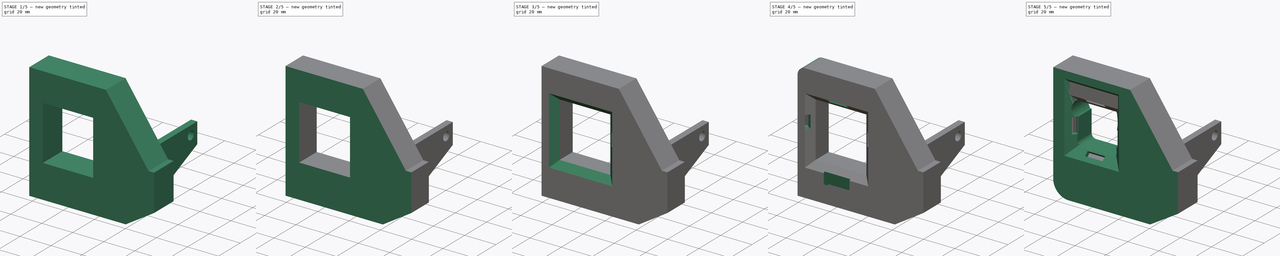
[diagram: build sequence overview — one tinted view per stage of 5, left to right]
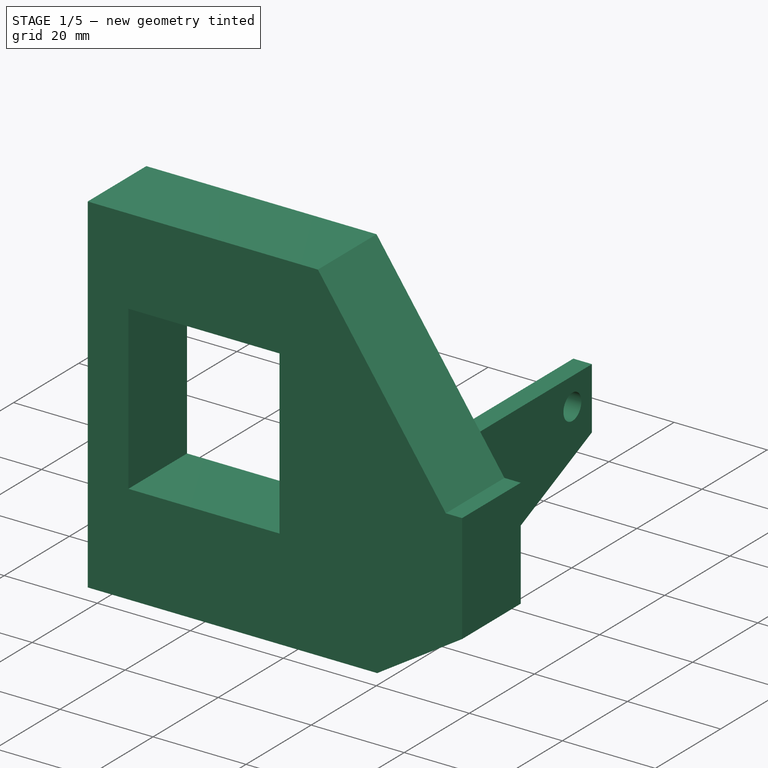
[diagram: stage 1 of 5 — iso view after this stage's code; geometry added in this stage tinted green]
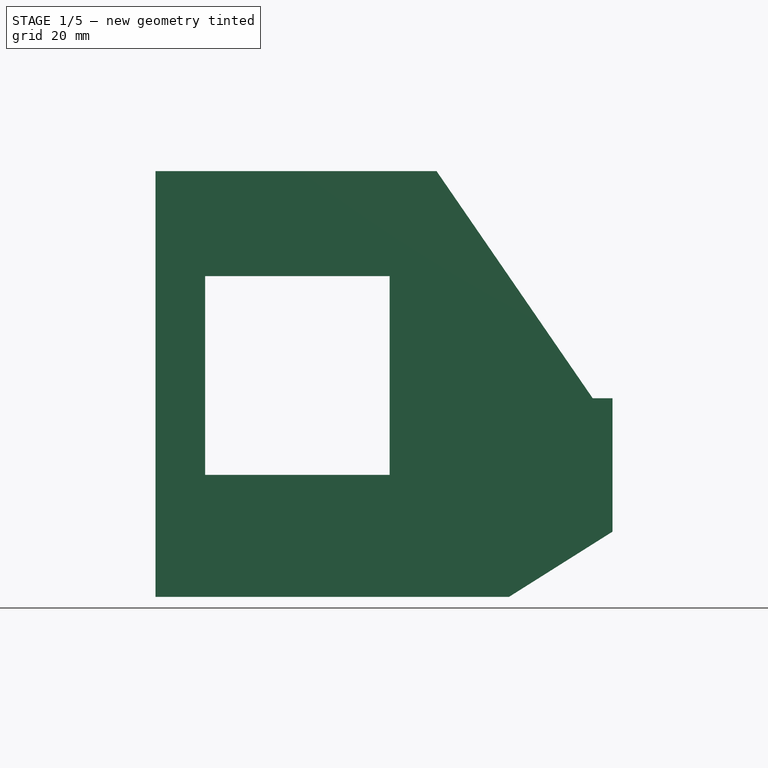
[diagram: stage 1 of 5 — front view after this stage's code; geometry added in this stage tinted green]
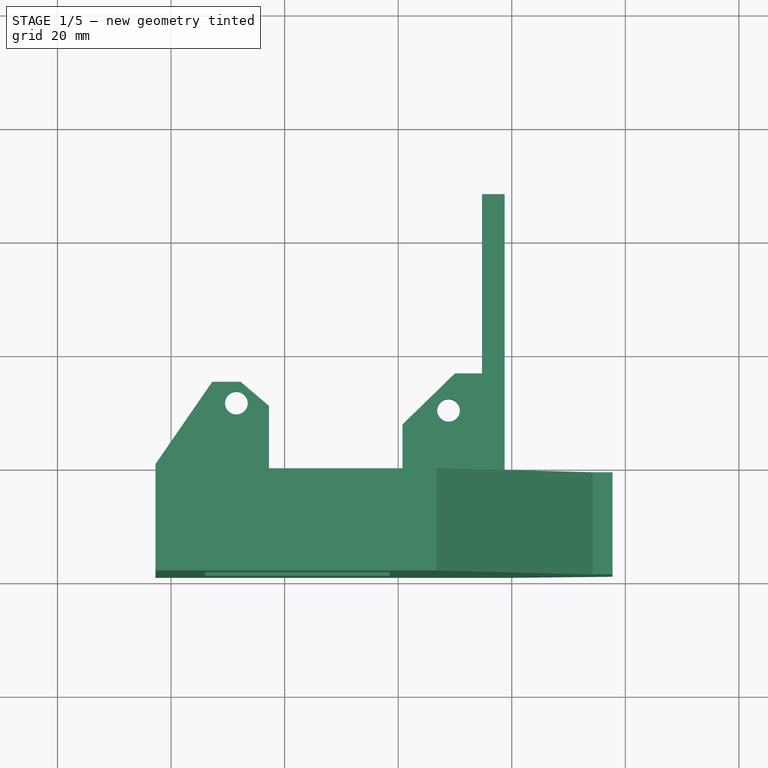
[diagram: stage 1 of 5 — top view after this stage's code; geometry added in this stage tinted green]
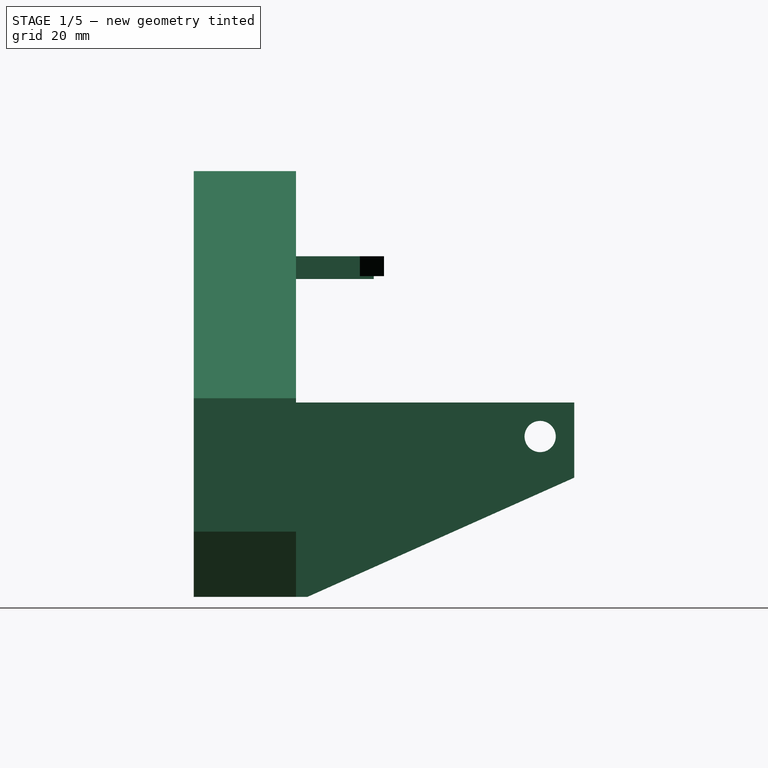
[diagram: stage 1 of 5 — right view after this stage's code; geometry added in this stage tinted green]
FCSTD DOCUMENT  (FreeCAD 0.17R11850 (Git))
Label: blower_shoud_v2
License: All rights reserved
LicenseURL: http://en.wikipedia.org/wiki/All_rights_reserved
objects: Sketcher::SketchObject×20, PartDesign::Pocket×7, PartDesign::Pad×5, App::FeaturePython×4, PartDesign::SubtractivePipe×4, PartDesign::Fillet×4, Part::FeaturePython×3, PartDesign::Chamfer×1, PartDesign::Body×1
note: 61 computed .brp shape members not serialized (recipe doc carries the construction recipe); baked Part::Feature solids carry a one-line shape summary decoded from their .brp

FEATURE [Part::FeaturePython] titan_assembly_2_mirror_sideways_block_01  # a2plus imported part (geometry in sourceFile) (typed FeaturePython)
  Placement = pos=(-35.5272,2.5,26.9) rot=(1,0,0;3.14159rad)
  fixedPosition = false
  sourceFile = <userpath>/west/Titan AEro/MINI_aero/titan_assembly_2_mirror_sideways_block.fcstd
  timeLastImport = 1496241552
  updateColors = true
FEATURE [Part::FeaturePython] titan_assembly_2_mirror_sideways_block_02  # a2plus imported part (geometry in sourceFile) (typed FeaturePython)
  Placement = pos=(-0.00571599,2.5,-0.1) rot=(0,0,1;3.14159rad)
  fixedPosition = false
  sourceFile = <userpath>/west/Titan AEro/MINI_aero/titan_assembly_2_mirror_sideways_block.fcstd
  timeLastImport = 1496241552
  updateColors = true
FEATURE [App::FeaturePython] circularEdgeConstraint01  label="circularEdgeConstraint01__aero_mini_blower_mount_v6_1_0_lower_01"  # a2plus constraint (typed FeaturePython)
  Object1 = titan_assembly_2_mirror_sideways_block_02
  Object2 = aero_mini_blower_mount_v6_1_0_lower_01
  SubElement1 = Edge5206
  SubElement2 = Edge78
  Type = circularEdge
  directionConstraint = 1
  lockRotation = false
  offset = 0
FEATURE [App::FeaturePython] circularEdgeConstraint01_mirror  label="circularEdgeConstraint01__titan_assembly_2_mirror_sideways_block_02"  # a2plus constraint (typed FeaturePython)
  Object1 = titan_assembly_2_mirror_sideways_block_02
  Object2 = aero_mini_blower_mount_v6_1_0_lower_01
  SubElement1 = Edge5206
  SubElement2 = Edge78
  Type = circularEdge
  directionConstraint = 1
  lockRotation = false
  offset = 0
FEATURE [App::FeaturePython] circularEdgeConstraint02  label="circularEdgeConstraint02__titan_assembly_2_mirror_sideways_block_02"  # a2plus constraint (typed FeaturePython)
  Object1 = titan_assembly_2_mirror_sideways_block_01
  Object2 = titan_assembly_2_mirror_sideways_block_02
  SubElement1 = Edge5317
  SubElement2 = Edge5317
  Type = circularEdge
  directionConstraint = 0
  lockRotation = false
  offset = 0
FEATURE [App::FeaturePython] circularEdgeConstraint02_mirror  label="circularEdgeConstraint02__titan_assembly_2_mirror_sideways_block_01"  # a2plus constraint (typed FeaturePython)
  Object1 = titan_assembly_2_mirror_sideways_block_01
  Object2 = titan_assembly_2_mirror_sideways_block_02
  SubElement1 = Edge5317
  SubElement2 = Edge5317
  Type = circularEdge
  directionConstraint = 0
  lockRotation = false
  offset = 0
FEATURE [Sketcher::SketchObject] Sketch
  MapMode = 5
  Placement = pos=(0,0,0) rot=(1,0,0;1.5708rad)
  Support = -> [XZ_Plane]
  sketch-geometry (11):
    g0: LineSegment StartX=-42.75 StartY=44.75 StartZ=0 EndX=6.75 EndY=44.75 EndZ=0
    g1: LineSegment StartX=37.75 StartY=-18.75 StartZ=0 EndX=19.5 EndY=-30.25 EndZ=0
    g2: LineSegment StartX=19.5 StartY=-30.25 StartZ=0 EndX=-42.75 EndY=-30.25 EndZ=0
    g3: LineSegment StartX=-42.75 StartY=-30.25 StartZ=0 EndX=-42.75 EndY=44.75 EndZ=0
    g4: LineSegment StartX=6.75 StartY=44.75 StartZ=0 EndX=34.25 EndY=4.75 EndZ=0
    g5: LineSegment StartX=34.25 StartY=4.75 StartZ=0 EndX=37.75 EndY=4.75 EndZ=0
    g6: LineSegment StartX=37.75 StartY=4.75 StartZ=0 EndX=37.75 EndY=-18.75 EndZ=0
    g7: LineSegment StartX=-34 StartY=26.25 StartZ=0 EndX=-1.5 EndY=26.25 EndZ=0
    g8: LineSegment StartX=-1.5 StartY=26.25 StartZ=0 EndX=-1.5 EndY=-8.75 EndZ=0
    g9: LineSegment StartX=-1.5 StartY=-8.75 StartZ=0 EndX=-34 EndY=-8.75 EndZ=0
    g10: LineSegment StartX=-34 StartY=-8.75 StartZ=0 EndX=-34 EndY=26.25 EndZ=0
  constraints (33):
    c: Coincident(g1,g2)
    c: Coincident(g2,g3)
    c: Coincident(g3,g0)
    c: Horizontal(g0)
    c: Horizontal(g2)
    c: Vertical(g3)
    c: DistanceX(g0) = -42.75
    c: DistanceY(g0) = 44.75
    c: DistanceY(g3,g3) = 75
    c: DistanceX(g2,g2) = 62.25
    c: Coincident(g0,g4)
    c: Coincident(g4,g5)
    c: Horizontal(g5)
    c: Coincident(g5,g6)
    c: Coincident(g6,g1)
    c: Vertical(g6)
    c: DistanceX(g0,g0) = 49.5
    c: DistanceY(g4,g4) = 40
    c: DistanceX(g4,g4) = 27.5
    c: DistanceX(g5,g5) = 3.5
    c: DistanceY(g1,g1) = 11.5
    c: Coincident(g7,g8)
    c: Coincident(g8,g9)
    c: Coincident(g9,g10)
    c: Coincident(g10,g7)
    c: Horizontal(g7)
    c: Horizontal(g9)
    c: Vertical(g8)
    c: Vertical(g10)
    c: DistanceX(g7,g0) = -8.75
    c: DistanceY(g7,g0) = 18.5
    c: DistanceX(g7,g7) = 32.5
    c: DistanceY(g10,g10) = 35
FEATURE [PartDesign::Pad] Pad
  Length = 19
  Length2 = 48
  Placement = pos=(0,0,0) rot=(1,0,0;1.5708rad)
  Profile = -> Sketch
  Type = 4
FEATURE [Sketcher::SketchObject] Sketch001
  ExternalGeometry = -> [Pad]
  MapMode = 5
  Placement = pos=(0,48,0) rot=(-1,0,0;1.5708rad)
  Support = -> [Pad]
  sketch-geometry (19):
    g0: LineSegment StartX=-42.75 StartY=-25.75 StartZ=0 EndX=-22.75 EndY=-25.75 EndZ=0
    g1: LineSegment StartX=-22.75 StartY=-29.75 StartZ=0 EndX=-42.75 EndY=-29.75 EndZ=0
    g2: LineSegment StartX=14.75 StartY=30.25 StartZ=0 EndX=14.75 EndY=6 EndZ=0
    g3: LineSegment StartX=18.75 StartY=-4 StartZ=0 EndX=18.75 EndY=30.25 EndZ=0
    g4: LineSegment StartX=18.75 StartY=-4 StartZ=0 EndX=14.75 EndY=-4 EndZ=0
    g5: LineSegment StartX=18.75 StartY=30.25 StartZ=0 EndX=19.5 EndY=30.25 EndZ=0
    g6: LineSegment StartX=19.5 StartY=30.25 StartZ=0 EndX=37.75 EndY=18.75 EndZ=0
    g7: LineSegment StartX=37.75 StartY=18.75 StartZ=0 EndX=37.75 EndY=-4.75 EndZ=0
    g8: LineSegment StartX=37.75 StartY=-4.75 StartZ=0 EndX=34.25 EndY=-4.75 EndZ=0
    g9: LineSegment StartX=34.25 StartY=-4.75 StartZ=0 EndX=6.75 EndY=-44.75 EndZ=0
    g10: LineSegment StartX=6.75 StartY=-44.75 StartZ=0 EndX=-42.75 EndY=-44.75 EndZ=0
    g11: LineSegment StartX=-42.75 StartY=-44.75 StartZ=0 EndX=-42.75 EndY=-29.75 EndZ=0
    g12: LineSegment StartX=-22.75 StartY=-29.75 StartZ=0 EndX=-22.75 EndY=-25.75 EndZ=0
    g13: LineSegment StartX=-42.75 StartY=-25.75 StartZ=0 EndX=-42.75 EndY=30.25 EndZ=0
    g14: LineSegment StartX=-42.75 StartY=30.25 StartZ=0 EndX=14.75 EndY=30.25 EndZ=0
    g15: LineSegment StartX=14.75 StartY=6 StartZ=0 EndX=0.75 EndY=6 EndZ=0
    g16: LineSegment StartX=0.75 StartY=6 StartZ=0 EndX=0.75 EndY=0 EndZ=0
    g17: LineSegment StartX=0.75 StartY=0 StartZ=0 EndX=14.75 EndY=0 EndZ=0
    g18: LineSegment StartX=14.75 StartY=0 StartZ=0 EndX=14.75 EndY=-4 EndZ=0
  constraints (51):
    c: Horizontal(g0)
    c: Horizontal(g1)
    c: PointOnObject(g0,g-4)
    c: DistanceY(g-4,g1) = 15
    c: DistanceX(g0,g0) = 20
    c: DistanceY(g1,g0) = 4
    c: Vertical(g2)
    c: Vertical(g3)
    c: PointOnObject(g3,g-3)
    c: DistanceX(g2,g3) = 4
    c: DistanceX(g3,g-3) = 0.75
    c: DistanceY(g18,g2) = 34.25
    c: Coincident(g3,g4)
    c: Coincident(g4,g18)
    c: Horizontal(g4)
    c: Coincident(g3,g5)
    c: Coincident(g5,g-3)
    c: Coincident(g5,g6)
    c: Coincident(g6,g-5)
    c: Coincident(g6,g7)
    c: Coincident(g7,g-5)
    c: Coincident(g7,g8)
    c: Coincident(g8,g9)
    c: Coincident(g9,g10)
    c: Coincident(g10,g-4)
    c: Horizontal(g10)
    c: Coincident(g10,g11)
    c: Coincident(g11,g1)
    c: Vertical(g11)
    c: Coincident(g1,g12)
    c: Coincident(g12,g0)
    c: Vertical(g12)
    c: Coincident(g0,g13)
    c: Coincident(g13,g-4)
    c: Coincident(g13,g14)
    c: Coincident(g14,g2)
    c: Horizontal(g14)
    c: Coincident(g8,g-7)
    c: Coincident(g9,g-7)
    c: Coincident(g15,g16)
    c: Coincident(g16,g17)
    c: Horizontal(g15)
    c: Horizontal(g17)
    c: Vertical(g16)
    c: DistanceY(g16,g16) = 6
    c: Coincident(g2,g15)
    c: PointOnObject(g18,g17)
    c: Tangent(g2,g18)
    c: Coincident(g17,g18)
    c: DistanceY(g18,g18) = 4
    c: DistanceX(g15,g15) = 14
FEATURE [PartDesign::Pocket] Pocket
  BaseFeature = -> Pad
  Length = 49
  Placement = pos=(0,0,0) rot=(1,0,0;1.5708rad)
  Profile = -> Sketch001
  Type = 0
FEATURE [Sketcher::SketchObject] Sketch002
  ExternalGeometry = -> [Pocket]
  MapMode = 5
  Placement = pos=(18.75,0,0) rot=(0.707107,0,0.707107;3.14159rad)
  Support = -> [Pocket]
  sketch-geometry (4):
    g0: Circle CenterX=-2 CenterY=-42 CenterZ=0 NormalX=0 NormalY=0 NormalZ=1 Radius=2.75
    g1: LineSegment StartX=-30.25 StartY=-1 StartZ=0 EndX=-9.25 EndY=-48 EndZ=0
    g2: LineSegment StartX=-9.25 StartY=-48 StartZ=0 EndX=-30.25 EndY=-48 EndZ=0
    g3: LineSegment StartX=-30.25 StartY=-48 StartZ=0 EndX=-30.25 EndY=-1 EndZ=0
  constraints (11):
    c: DistanceX(g-3,g0) = -6
    c: DistanceY(g-3,g0) = 6
    c: Radius(g0) = 2.75
    c: PointOnObject(g1,g-4)
    c: PointOnObject(g1,g-3)
    c: Coincident(g1,g2)
    c: Coincident(g2,g-4)
    c: Coincident(g2,g3)
    c: Coincident(g3,g1)
    c: DistanceY(g3,g3) = 47
    c: DistanceX(g2,g2) = 21
FEATURE [PartDesign::Pocket] Pocket001
  BaseFeature = -> Pocket
  Length = 5
  Placement = pos=(0,0,0) rot=(1,0,0;1.5708rad)
  Profile = -> Sketch002
  Type = 0
FEATURE [Sketcher::SketchObject] Sketch003
  ExternalGeometry = -> [Pocket001]
  MapMode = 5
  Placement = pos=(0,0,-6) rot=(1,0,0;3.14159rad)
  Support = -> [Pocket001]
  sketch-geometry (13):
    g0: LineSegment StartX=-42.75 StartY=0 StartZ=0 EndX=-32.75 EndY=-14.5 EndZ=0
    g1: LineSegment StartX=-32.75 StartY=-14.5 StartZ=0 EndX=-27.75 EndY=-14.5 EndZ=0
    g2: LineSegment StartX=-27.75 StartY=-14.5 StartZ=0 EndX=-22.75 EndY=-10.25 EndZ=0
    g3: LineSegment StartX=-22.75 StartY=-10.25 StartZ=0 EndX=-22.75 EndY=-48 EndZ=0
    g4: LineSegment StartX=-22.75 StartY=-48 StartZ=0 EndX=-42.75 EndY=-48 EndZ=0
    g5: LineSegment StartX=-42.75 StartY=-48 StartZ=0 EndX=-42.75 EndY=0 EndZ=0
    g6: LineSegment StartX=0.75 StartY=-7.5 StartZ=0 EndX=10 EndY=-16.5 EndZ=0
    g7: LineSegment StartX=10 StartY=-16.5 StartZ=0 EndX=14.75 EndY=-16.5 EndZ=0
    g8: LineSegment StartX=14.75 StartY=-16.5 StartZ=0 EndX=14.75 EndY=-48 EndZ=0
    g9: LineSegment StartX=14.75 StartY=-48 StartZ=0 EndX=0.75 EndY=-48 EndZ=0
    g10: LineSegment StartX=0.75 StartY=-48 StartZ=0 EndX=0.75 EndY=-7.5 EndZ=0
    g11: Circle CenterX=-28.5 CenterY=-10.75 CenterZ=0 NormalX=0 NormalY=0 NormalZ=1 Radius=2
    g12: Circle CenterX=8.875 CenterY=-10 CenterZ=0 NormalX=0 NormalY=0 NormalZ=1 Radius=2
  constraints (36):
    c: PointOnObject(g0,g-6)
    c: Coincident(g0,g1)
    c: Horizontal(g1)
    c: Coincident(g1,g2)
    c: PointOnObject(g2,g-5)
    c: Coincident(g2,g3)
    c: Coincident(g3,g-5)
    c: Coincident(g3,g4)
    c: Coincident(g4,g-6)
    c: Coincident(g4,g5)
    c: Coincident(g5,g0)
    c: PointOnObject(g6,g-4)
    c: Coincident(g6,g7)
    c: PointOnObject(g7,g-3)
    c: Horizontal(g7)
    c: Coincident(g7,g8)
    c: Coincident(g8,g-3)
    c: Coincident(g8,g9)
    c: Horizontal(g9)
    c: Coincident(g9,g10)
    c: Coincident(g10,g6)
    c: Vertical(g10)
    c: DistanceY(g10,g10) = 40.5
    c: DistanceY(g9,g6) = 31.5
    c: DistanceX(g7,g7) = 4.75
    c: DistanceX(g12,g6) = 1.125
    c: DistanceY(g12,g6) = -6.5
    c: Radius(g12) = 2
    c: DistanceX(g11,g1) = 0.75
    c: DistanceY(g11,g1) = -3.75
    c: DistanceY(g3,g3) = 37.75
    c: DistanceY(g3,g1) = 33.5
    c: DistanceY(g0,g0) = 14.5
    c: DistanceX(g1,g1) = 5
    c: DistanceX(g4,g0) = 10
    c: Radius(g11) = 2
FEATURE [PartDesign::Pocket] Pocket002
  BaseFeature = -> Pocket001
  Length = 5
  Placement = pos=(0,0,0) rot=(1,0,0;1.5708rad)
  Profile = -> Sketch003
  Type = 1
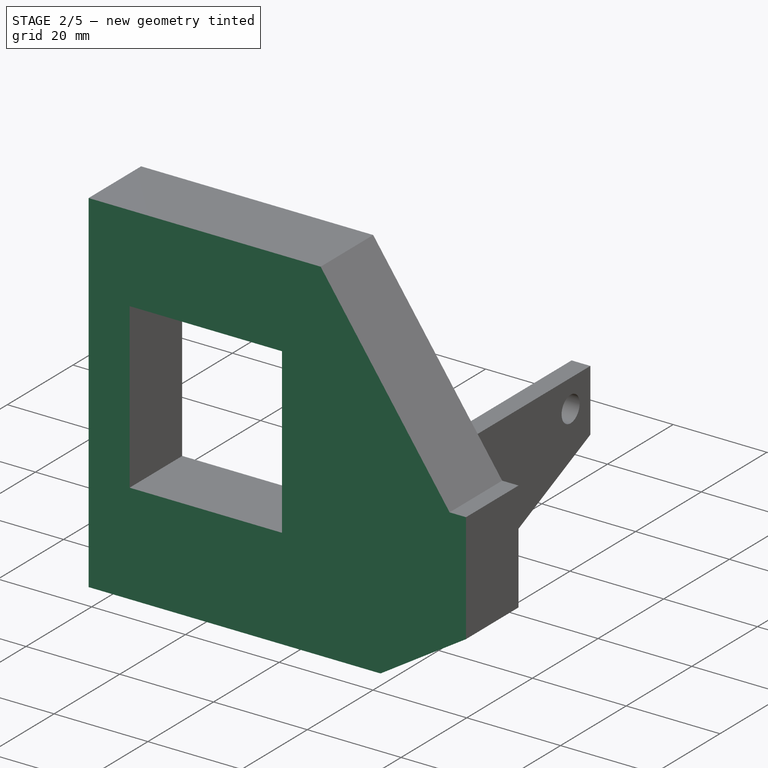
[diagram: stage 2 of 5 — iso view after this stage's code; geometry added in this stage tinted green]
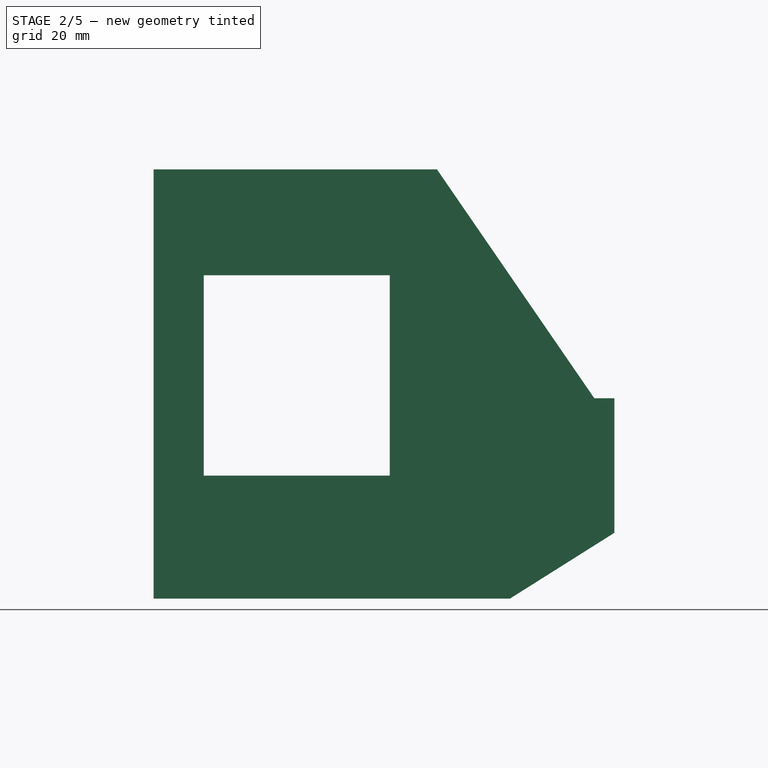
[diagram: stage 2 of 5 — front view after this stage's code; geometry added in this stage tinted green]
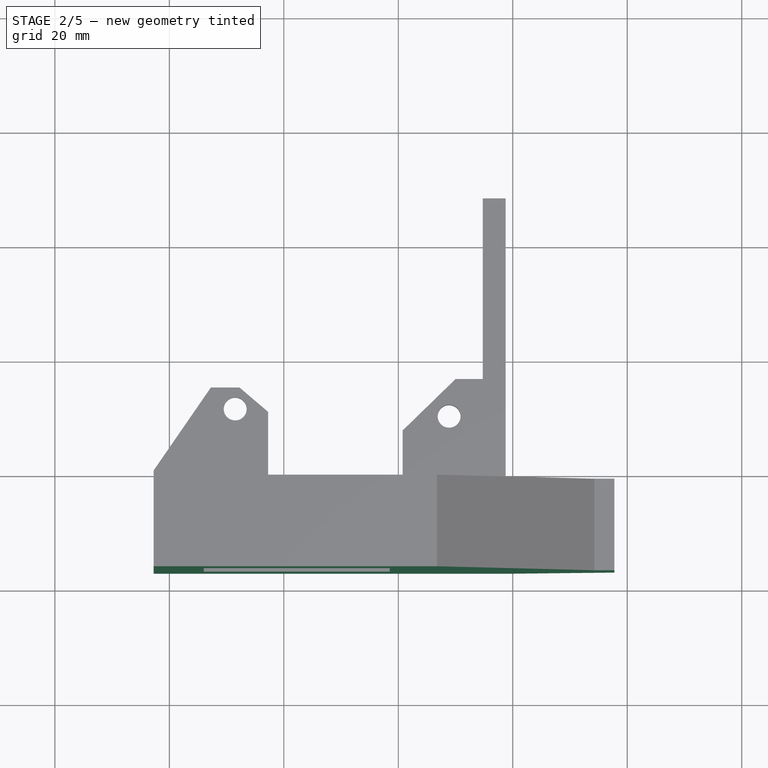
[diagram: stage 2 of 5 — top view after this stage's code; geometry added in this stage tinted green]
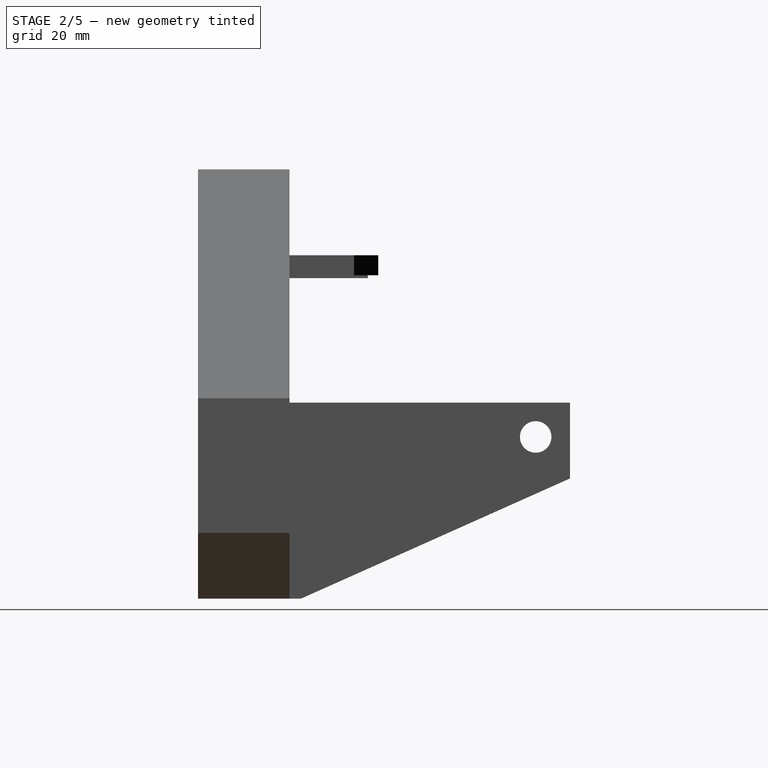
[diagram: stage 2 of 5 — right view after this stage's code; geometry added in this stage tinted green]
FEATURE [Sketcher::SketchObject] Sketch004
  ExternalGeometry = -> [Pocket002]
  MapMode = 5
  Placement = pos=(0,-19,0) rot=(1,0,0;1.5708rad)
  Support = -> [Pocket002]
  sketch-geometry (11):
    g0: LineSegment StartX=-41.25 StartY=43.25 StartZ=0 EndX=5.75 EndY=43.25 EndZ=0
    g1: LineSegment StartX=18.7935 StartY=-28.75 StartZ=0 EndX=-41.25 EndY=-28.75 EndZ=0
    g2: LineSegment StartX=-41.25 StartY=-28.75 StartZ=0 EndX=-41.25 EndY=43.25 EndZ=0
    g3: LineSegment StartX=18.7935 StartY=-28.75 StartZ=0 EndX=36.25 EndY=-17.75 EndZ=0
    g4: LineSegment StartX=36.25 StartY=-17.75 StartZ=0 EndX=36.25 EndY=3.25 EndZ=0
    g5: LineSegment StartX=36.25 StartY=3.25 StartZ=0 EndX=33.25 EndY=3.25 EndZ=0
    g6: LineSegment StartX=33.25 StartY=3.25 StartZ=0 EndX=5.75 EndY=43.25 EndZ=0
    g7: LineSegment StartX=-35.5 StartY=27.75 StartZ=0 EndX=0 EndY=27.75 EndZ=0
    g8: LineSegment StartX=0 StartY=27.75 StartZ=0 EndX=0 EndY=-10.25 EndZ=0
    g9: LineSegment StartX=0 StartY=-10.25 StartZ=0 EndX=-35.5 EndY=-10.25 EndZ=0
    g10: LineSegment StartX=-35.5 StartY=-10.25 StartZ=0 EndX=-35.5 EndY=27.75 EndZ=0
  constraints (34):
    c: Coincident(g1,g2)
    c: Coincident(g2,g0)
    c: Horizontal(g0)
    c: Horizontal(g1)
    c: Vertical(g2)
    c: DistanceX(g0,g-7) = -1.5
    c: DistanceY(g0,g-7) = 1.5
    c: DistanceX(g-10,g1) = 1.5
    c: DistanceY(g-10,g1) = 1.5
    c: Coincident(g1,g3)
    c: Coincident(g3,g4)
    c: Vertical(g4)
    c: Coincident(g4,g5)
    c: Horizontal(g5)
    c: Coincident(g5,g6)
    c: Coincident(g6,g0)
    c: DistanceY(g4,g-9) = 1.5
    c: Parallel(g6,g-8)
    c: DistanceX(g0,g-8) = 1
    c: DistanceX(g4,g-9) = 1.5
    c: Parallel(g3,g-11)
    c: DistanceY(g-11,g3) = 1
    c: Coincident(g7,g8)
    c: Coincident(g8,g9)
    c: Coincident(g9,g10)
    c: Coincident(g10,g7)
    c: Horizontal(g7)
    c: Horizontal(g9)
    c: Vertical(g8)
    c: Vertical(g10)
    c: DistanceX(g8,g-6) = -1.5
    c: DistanceY(g8,g-6) = 1.5
    c: DistanceX(g7,g-5) = 1.5
    c: DistanceY(g7,g-5) = -1.5
FEATURE [PartDesign::Pocket] Pocket003
  BaseFeature = -> Pocket002
  Length = 17
  Placement = pos=(0,0,0) rot=(1,0,0;1.5708rad)
  Profile = -> Sketch004
  Type = 0
FEATURE [Sketcher::SketchObject] Sketch005
  ExternalGeometry = -> [Pocket003]
  MapMode = 5
  Placement = pos=(0,-19,0) rot=(1,0,0;1.5708rad)
  Support = -> [Pocket003]
  sketch-geometry (11):
    g0: LineSegment StartX=-42.75 StartY=44.75 StartZ=0 EndX=6.75 EndY=44.75 EndZ=0
    g1: LineSegment StartX=6.75 StartY=44.75 StartZ=0 EndX=34.25 EndY=4.75 EndZ=0
    g2: LineSegment StartX=34.25 StartY=4.75 StartZ=0 EndX=37.75 EndY=4.75 EndZ=0
    g3: LineSegment StartX=37.75 StartY=4.75 StartZ=0 EndX=37.75 EndY=-18.75 EndZ=0
    g4: LineSegment StartX=37.75 StartY=-18.75 StartZ=0 EndX=19.5 EndY=-30.25 EndZ=0
    g5: LineSegment StartX=19.5 StartY=-30.25 StartZ=0 EndX=-42.75 EndY=-30.25 EndZ=0
    g6: LineSegment StartX=-42.75 StartY=-30.25 StartZ=0 EndX=-42.75 EndY=44.75 EndZ=0
    g7: LineSegment StartX=-35.5 StartY=27.75 StartZ=0 EndX=0 EndY=27.75 EndZ=0
    g8: LineSegment StartX=0 StartY=27.75 StartZ=0 EndX=0 EndY=-10.25 EndZ=0
    g9: LineSegment StartX=0 StartY=-10.25 StartZ=0 EndX=-35.5 EndY=-10.25 EndZ=0
    g10: LineSegment StartX=-35.5 StartY=-10.25 StartZ=0 EndX=-35.5 EndY=27.75 EndZ=0
  constraints (24):
    c: Coincident(g0,g1)
    c: Coincident(g1,g2)
    c: Coincident(g2,g3)
    c: Coincident(g3,g4)
    c: Coincident(g4,g5)
    c: Coincident(g5,g6)
    c: Coincident(g6,g0)
    c: Coincident(g7,g8)
    c: Coincident(g8,g9)
    c: Coincident(g9,g10)
    c: Coincident(g10,g7)
    c: Horizontal(g7)
    c: Horizontal(g9)
    c: Vertical(g8)
    c: Vertical(g10)
    c: Coincident(g7,g-9)
    c: Coincident(g9,g-8)
    c: Coincident(g5,g-3)
    c: Coincident(g4,g-6)
    c: Coincident(g3,g-6)
    c: Coincident(g2,g-5)
    c: Coincident(g0,g-4)
    c: Coincident(g0,g-4)
    c: Coincident(g1,g-5)
FEATURE [PartDesign::Pad] Pad001
  BaseFeature = -> Pocket003
  Length = 6
  Length2 = 100
  Placement = pos=(0,0,0) rot=(1,0,0;1.5708rad)
  Profile = -> Sketch005
  Reversed = true
  Type = 0
FEATURE [Sketcher::SketchObject] Sketch006
  ExternalGeometry = -> [Pad001]
  MapMode = 5
  Placement = pos=(0,-1,0) rot=(-1,0,0;1.5708rad)
  Support = -> [Pad001]
  sketch-geometry (4):
    g0: LineSegment StartX=18.75 StartY=18.25 StartZ=0 EndX=34.75 EndY=18.25 EndZ=0
    g1: LineSegment StartX=34.75 StartY=18.25 StartZ=0 EndX=34.75 EndY=-3.25 EndZ=0
    g2: LineSegment StartX=34.75 StartY=-3.25 StartZ=0 EndX=18.75 EndY=-3.25 EndZ=0
    g3: LineSegment StartX=18.75 StartY=-3.25 StartZ=0 EndX=18.75 EndY=18.25 EndZ=0
  constraints (12):
    c: Coincident(g0,g1)
    c: Coincident(g1,g2)
    c: Coincident(g2,g3)
    c: Coincident(g3,g0)
    c: Horizontal(g0)
    c: Horizontal(g2)
    c: Vertical(g1)
    c: Vertical(g3)
    c: DistanceX(g-4,g2) = 0
    c: DistanceY(g-3,g1) = 1.5
    c: DistanceY(g0,g-3) = 0.5
    c: DistanceX(g0,g0) = 16
FEATURE [PartDesign::Pocket] Pocket004
  BaseFeature = -> Pad001
  Length = 1
  Placement = pos=(0,0,0) rot=(1,0,0;1.5708rad)
  Profile = -> Sketch006
  Type = 0
FEATURE [Sketcher::SketchObject] Sketch020
  ExternalGeometry = -> [Pocket004]
  MapMode = 5
  Placement = pos=(0,0,-30.25) rot=(1,0,0;3.14159rad)
  Support = -> [Pocket004]
  sketch-geometry (4):
    g0: LineSegment StartX=37.75 StartY=19 StartZ=0 EndX=-42.75 EndY=19 EndZ=0
    g1: LineSegment StartX=-42.75 StartY=19 StartZ=0 EndX=-42.75 EndY=17 EndZ=0
    g2: LineSegment StartX=-42.75 StartY=17 StartZ=0 EndX=37.75 EndY=17 EndZ=0
    g3: LineSegment StartX=37.75 StartY=17 StartZ=0 EndX=37.75 EndY=19 EndZ=0
  constraints (11):
    c: Coincident(g0,g1)
    c: Coincident(g1,g2)
    c: Coincident(g2,g3)
    c: Coincident(g3,g0)
    c: Horizontal(g0)
    c: Horizontal(g2)
    c: Vertical(g1)
    c: Vertical(g3)
    c: Coincident(g0,g-3)
    c: PointOnObject(g1,g-4)
    c: DistanceY(g1,g1) = 2
FEATURE [PartDesign::Pocket] Pocket005
  BaseFeature = -> Pocket004
  Length = 5
  Placement = pos=(0,0,0) rot=(1,0,0;1.5708rad)
  Profile = -> Sketch020
  Type = 1
FEATURE [Sketcher::SketchObject] Sketch009
  ExternalGeometry = -> [Pocket005]
  MapMode = 5
  Placement = pos=(0,0,3.25) rot=(1,0,0;3.14159rad)
  sketch-geometry (5):
    g0: LineSegment StartX=36.25 StartY=1 StartZ=0 EndX=36.25 EndY=13 EndZ=0
    g1: LineSegment StartX=36.25 StartY=13 StartZ=0 EndX=28.7935 EndY=13 EndZ=0
    g2: LineSegment StartX=28.7935 StartY=13 StartZ=0 EndX=17.7935 EndY=2 EndZ=0
    g3: LineSegment StartX=17.7935 StartY=2 StartZ=0 EndX=17.7935 EndY=1 EndZ=0
    g4: LineSegment StartX=17.7935 StartY=1 StartZ=0 EndX=36.25 EndY=1 EndZ=0
  constraints (15):
    c: Vertical(g0)
    c: Coincident(g0,g1)
    c: Horizontal(g1)
    c: Coincident(g1,g2)
    c: DistanceX(g2,g-4) = 1
    c: Angle(g2) = -2.35619
    c: PointOnObject(g0,g-5)
    c: Coincident(g2,g3)
    c: Vertical(g3)
    c: Coincident(g3,g4)
    c: PointOnObject(g4,g-6)
    c: Horizontal(g4)
    c: Coincident(g0,g4)
    c: PointOnObject(g-3,g0)
    c: DistanceY(g3,g3) = 1
FEATURE [PartDesign::Pad] Pad002
  BaseFeature = -> Pocket005
  Length = 1
  Length2 = 100
  Placement = pos=(0,0,0) rot=(1,0,0;1.5708rad)
  Profile = -> Sketch009
  Type = 0
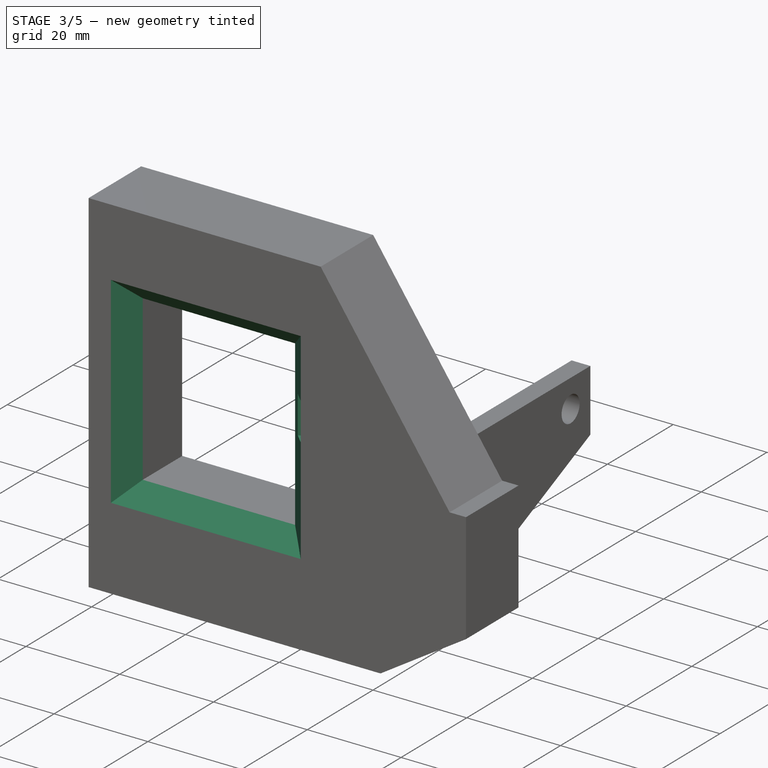
[diagram: stage 3 of 5 — iso view after this stage's code; geometry added in this stage tinted green]
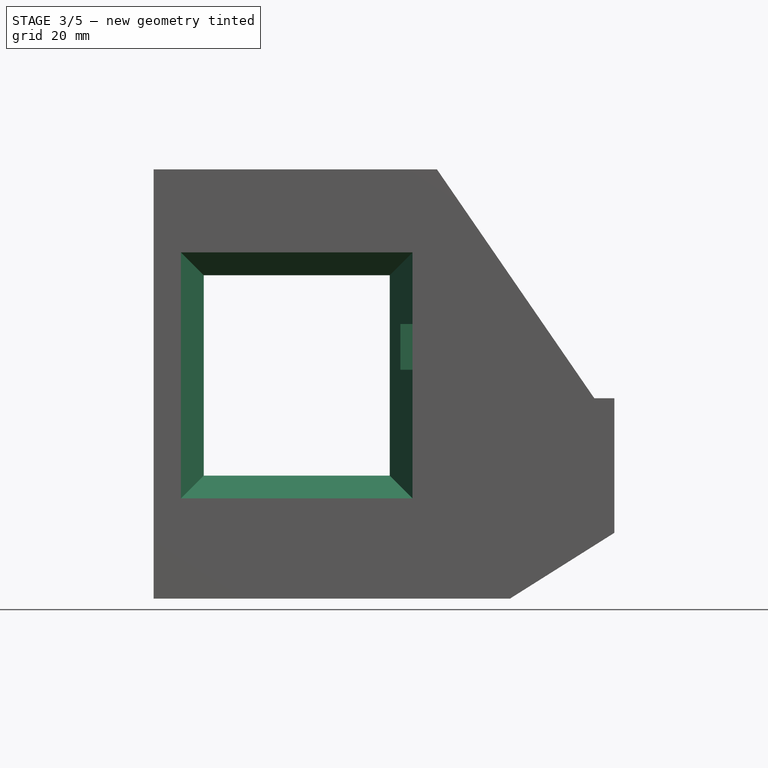
[diagram: stage 3 of 5 — front view after this stage's code; geometry added in this stage tinted green]
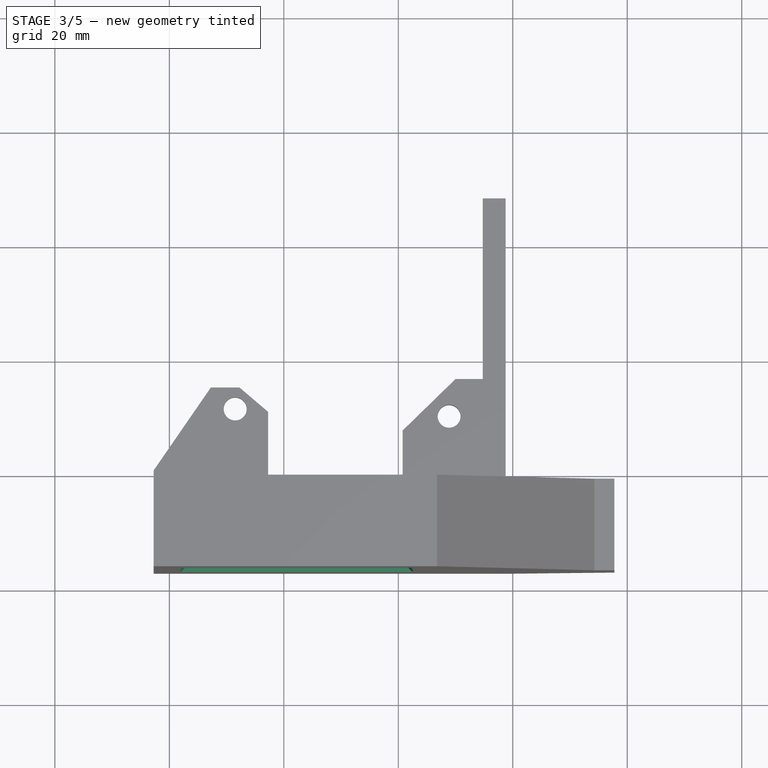
[diagram: stage 3 of 5 — top view after this stage's code; geometry added in this stage tinted green]
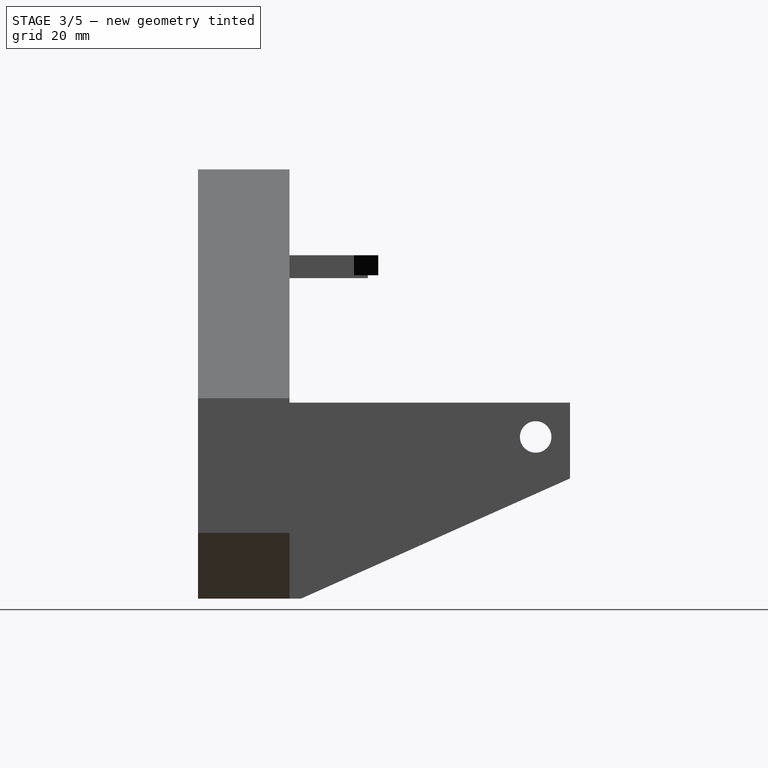
[diagram: stage 3 of 5 — right view after this stage's code; geometry added in this stage tinted green]
FEATURE [Sketcher::SketchObject] Sketch010
  ExternalGeometry = -> [Pad002]
  MapMode = 5
  Placement = pos=(0,0,-18.25) rot=(0,0,1;3.14159rad)
  Support = -> [Pad002]
  sketch-geometry (4):
    g0: LineSegment StartX=-28.7935 StartY=13 StartZ=0 EndX=-36.25 EndY=13 EndZ=0
    g1: LineSegment StartX=-36.25 StartY=13 StartZ=0 EndX=-36.25 EndY=2 EndZ=0
    g2: LineSegment StartX=-36.25 StartY=2 StartZ=0 EndX=-17.7935 EndY=2 EndZ=0
    g3: LineSegment StartX=-17.7935 StartY=2 StartZ=0 EndX=-28.7935 EndY=13 EndZ=0
  constraints (8):
    c: Coincident(g-4,g0)
    c: Coincident(g0,g-3)
    c: Coincident(g0,g1)
    c: Coincident(g1,g-3)
    c: Coincident(g1,g2)
    c: Coincident(g2,g-4)
    c: Coincident(g2,g3)
    c: Coincident(g3,g0)
FEATURE [PartDesign::Pad] Pad003
  BaseFeature = -> Pad002
  Length = 1
  Length2 = 100
  Placement = pos=(0,0,0) rot=(1,0,0;1.5708rad)
  Profile = -> Sketch010
  Reversed = true
  Type = 0
FEATURE [Sketcher::SketchObject] Sketch011
  ExternalGeometry = -> [Pad003]
  MapMode = 5
  Placement = pos=(0,0,-18.25) rot=(0,0,1;3.14159rad)
  Support = -> [Pad003]
  sketch-geometry (3):
    g0: LineSegment StartX=-18.7935 StartY=2 StartZ=0 EndX=-18.2935 EndY=2.5 EndZ=0
    g1: LineSegment StartX=-18.2935 StartY=2.5 StartZ=0 EndX=-17.7935 EndY=2 EndZ=0
    g2: LineSegment StartX=-17.7935 StartY=2 StartZ=0 EndX=-18.7935 EndY=2 EndZ=0
  constraints (7):
    c: Coincident(g-3,g0)
    c: PointOnObject(g0,g-4)
    c: Coincident(g0,g1)
    c: Coincident(g1,g-4)
    c: Coincident(g1,g2)
    c: Coincident(g2,g0)
    c: Equal(g1,g0)
FEATURE [PartDesign::Pad] Pad004
  BaseFeature = -> Pad003
  Length = 20.5
  Length2 = 100
  Placement = pos=(0,0,0) rot=(1,0,0;1.5708rad)
  Profile = -> Sketch011
  Type = 0
FEATURE [PartDesign::Chamfer] Chamfer
  Base = -> Pad004 [Edge110,Edge109,Edge64,Edge58]
  BaseFeature = -> Pad004
  Placement = pos=(0,0,0) rot=(1,0,0;1.5708rad)
  Size = 3.99
FEATURE [Sketcher::SketchObject] Sketch021
  ExternalGeometry = -> [Chamfer]
  MapMode = 5
  Placement = pos=(-7.255,-7.255,0) rot=(-0.678598,-0.281085,0.678598;3.68962rad)
  Support = -> [Chamfer]
  sketch-geometry (4):
    g0: LineSegment StartX=-17.74 StartY=13.7815 StartZ=0 EndX=-9.74 EndY=13.7815 EndZ=0
    g1: LineSegment StartX=-9.74 StartY=13.7815 StartZ=0 EndX=-9.74 EndY=10.7815 EndZ=0
    g2: LineSegment StartX=-9.74 StartY=10.7815 StartZ=0 EndX=-17.74 EndY=10.7815 EndZ=0
    g3: LineSegment StartX=-17.74 StartY=10.7815 StartZ=0 EndX=-17.74 EndY=13.7815 EndZ=0
  constraints (12):
    c: Coincident(g0,g1)
    c: Coincident(g1,g2)
    c: Coincident(g2,g3)
    c: Coincident(g3,g0)
    c: Horizontal(g0)
    c: Horizontal(g2)
    c: Vertical(g1)
    c: Vertical(g3)
    c: PointOnObject(g0,g-3)
    c: DistanceX(g2,g2) = 8
    c: DistanceX(g-3,g0) = 12.5
    c: DistanceY(g3,g3) = 3
FEATURE [Sketcher::SketchObject] Sketch022
  MapMode = 5
  Placement = pos=(0,0,-8.75) rot=(0,0,1;3.14159rad)
  Support = -> [Chamfer]
  sketch-geometry (1):
    g0: LineSegment StartX=-14.632 StartY=10.7284 StartZ=0 EndX=17.7117 EndY=24.4576 EndZ=0
  constraints (1):
    c: Angle(g0) = 0.401426
FEATURE [PartDesign::SubtractivePipe] SubtractivePipe
  AuxilleryCurvelinear = true
  AuxillerySpineTangent = false
  BaseFeature = -> Chamfer
  Binormal = (0,0,0)
  Mode = 0
  Placement = pos=(0,0,0) rot=(1,0,0;1.5708rad)
  Profile = -> Sketch021
  Spine = -> Sketch022 [Edge1]
  SpineTangent = false
  Transformation = 0
  Transition = 0
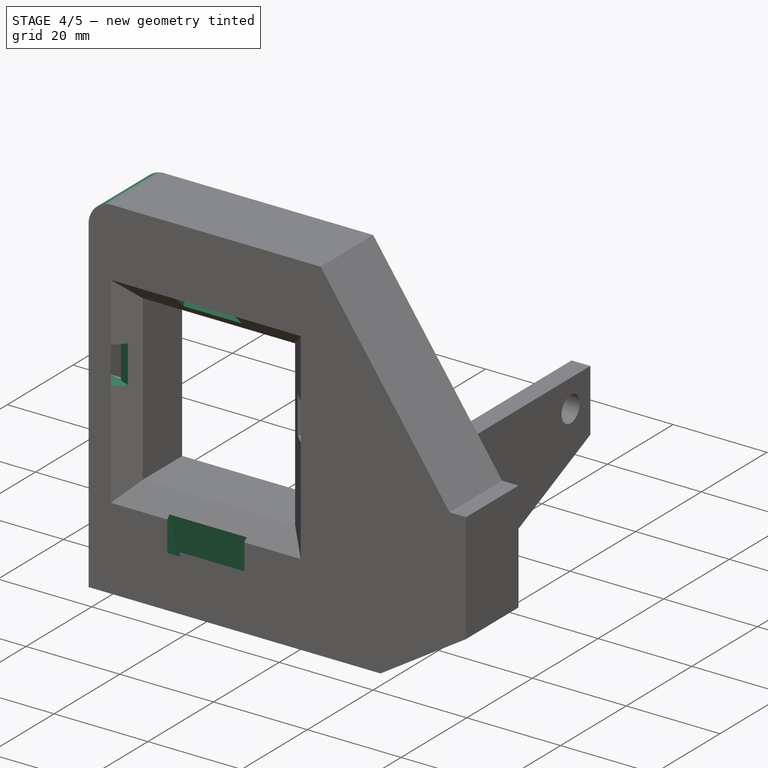
[diagram: stage 4 of 5 — iso view after this stage's code; geometry added in this stage tinted green]
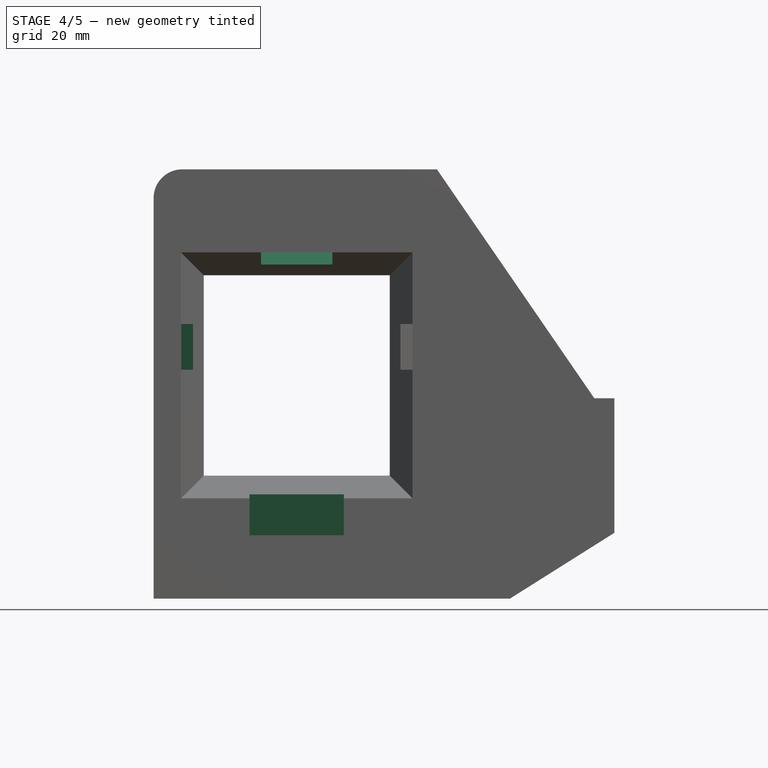
[diagram: stage 4 of 5 — front view after this stage's code; geometry added in this stage tinted green]
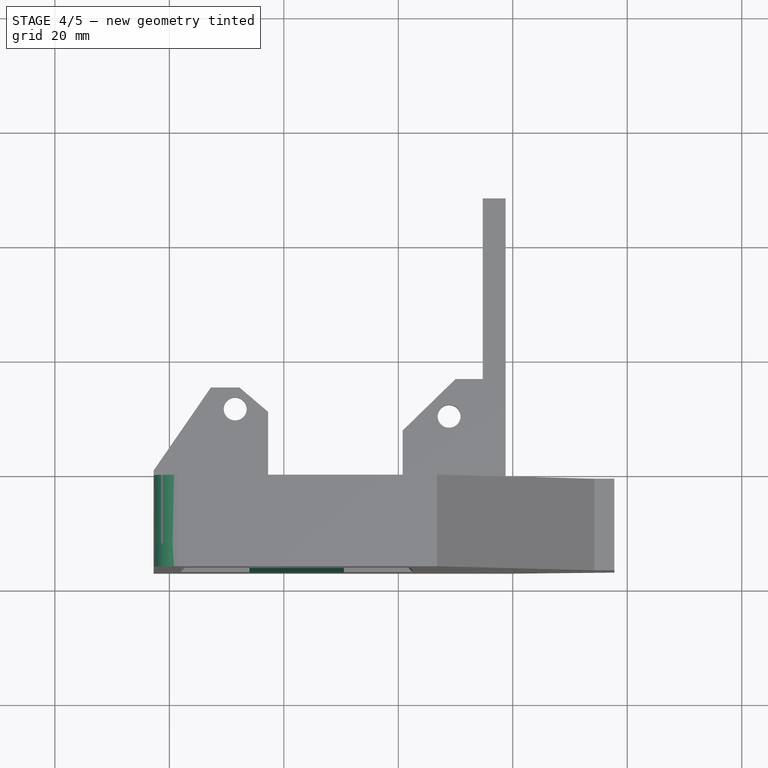
[diagram: stage 4 of 5 — top view after this stage's code; geometry added in this stage tinted green]
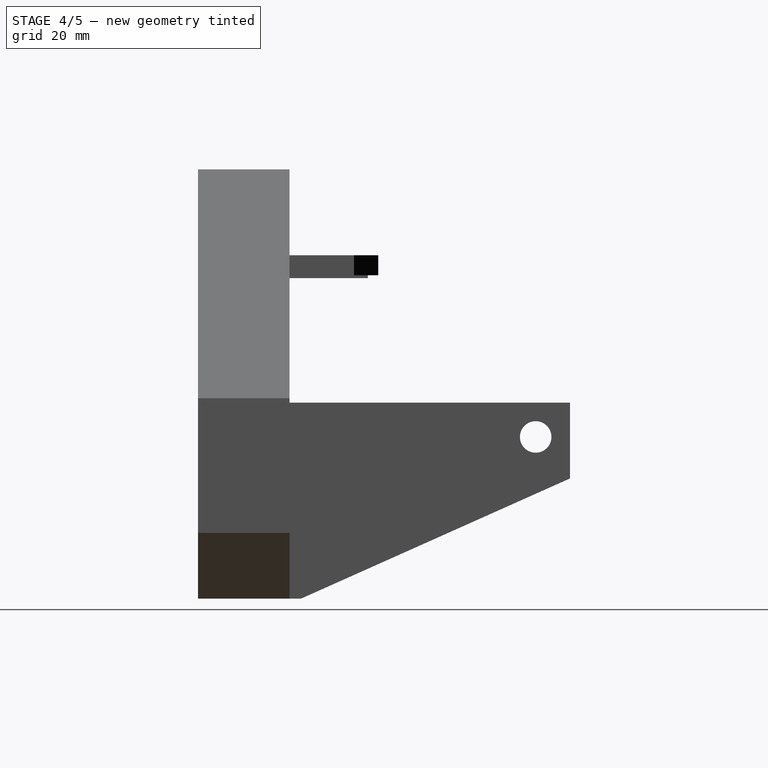
[diagram: stage 4 of 5 — right view after this stage's code; geometry added in this stage tinted green]
FEATURE [Sketcher::SketchObject] Sketch023
  ExternalGeometry = -> [SubtractivePipe]
  MapMode = 5
  Placement = pos=(-10.495,10.495,0) rot=(0.862856,0.357407,0.357407;1.71777rad)
  Support = -> [SubtractivePipe]
  sketch-geometry (4):
    g0: LineSegment StartX=-38.8838 StartY=17.74 StartZ=0 EndX=-35.8838 EndY=17.74 EndZ=0
    g1: LineSegment StartX=-35.8838 StartY=17.74 StartZ=0 EndX=-35.8838 EndY=9.74 EndZ=0
    g2: LineSegment StartX=-35.8838 StartY=9.74 StartZ=0 EndX=-38.8838 EndY=9.74 EndZ=0
    g3: LineSegment StartX=-38.8838 StartY=9.74 StartZ=0 EndX=-38.8838 EndY=17.74 EndZ=0
  constraints (12):
    c: Coincident(g0,g1)
    c: Coincident(g1,g2)
    c: Coincident(g2,g3)
    c: Coincident(g3,g0)
    c: Horizontal(g0)
    c: Horizontal(g2)
    c: Vertical(g1)
    c: Vertical(g3)
    c: PointOnObject(g0,g-3)
    c: DistanceY(g1,g1) = 8
    c: DistanceY(g0,g-3) = 12.5
    c: DistanceX(g0,g0) = 3
FEATURE [Sketcher::SketchObject] Sketch024
  ExternalGeometry = -> [SubtractivePipe]
  MapMode = 5
  Placement = pos=(0,0,-8.75) rot=(0,0,1;3.14159rad)
  Support = -> [SubtractivePipe]
  sketch-geometry (2):
    g0: LineSegment StartX=19.6372 StartY=23.8294 StartZ=0 EndX=40.25 EndY=15.0799 EndZ=0
    g1: LineSegment StartX=40.25 StartY=15.0799 StartZ=0 EndX=40.25 EndY=12.0129 EndZ=0
  constraints (4):
    c: Coincident(g1,g0)
    c: Vertical(g1)
    c: DistanceX(g1,g-3) = 1
    c: Angle(g0) = -0.401426
FEATURE [PartDesign::SubtractivePipe] SubtractivePipe003002
  AuxilleryCurvelinear = true
  AuxillerySpineTangent = false
  BaseFeature = -> SubtractivePipe
  Binormal = (0,0,0)
  Mode = 0
  Placement = pos=(0,0,0) rot=(1,0,0;1.5708rad)
  Profile = -> Sketch023
  Spine = -> Sketch024 [Edge1,Edge2]
  SpineTangent = false
  Transformation = 0
  Transition = 0
FEATURE [Sketcher::SketchObject] Sketch025
  ExternalGeometry = -> [SubtractivePipe003002]
  MapMode = 5
  Placement = pos=(0,-2.13,2.13) rot=(0,-0.382683,0.92388;3.14159rad)
  Support = -> [SubtractivePipe003002]
  sketch-geometry (4):
    g0: LineSegment StartX=9.51 StartY=20.0294 StartZ=0 EndX=25.99 EndY=20.0294 EndZ=0
    g1: LineSegment StartX=25.99 StartY=20.0294 StartZ=0 EndX=25.99 EndY=23.0294 EndZ=0
    g2: LineSegment StartX=25.99 StartY=23.0294 StartZ=0 EndX=9.51 EndY=23.0294 EndZ=0
    g3: LineSegment StartX=9.51 StartY=23.0294 StartZ=0 EndX=9.51 EndY=20.0294 EndZ=0
  constraints (12):
    c: Coincident(g0,g1)
    c: Coincident(g1,g2)
    c: Coincident(g2,g3)
    c: Coincident(g3,g0)
    c: Horizontal(g0)
    c: Horizontal(g2)
    c: Vertical(g1)
    c: Vertical(g3)
    c: DistanceY(g1,g1) = 3
    c: DistanceY(g0,g-3) = 1
    c: DistanceX(g0,g-3) = 12
    c: DistanceX(g-3,g0) = 12
FEATURE [Sketcher::SketchObject] Sketch026
  MapMode = 5
  Placement = pos=(-1.5,0,0) rot=(0.707107,0,-0.707107;3.14159rad)
  Support = -> [SubtractivePipe003002]
  sketch-geometry (2):
    g0: LineSegment StartX=-13.4467 StartY=24.1054 StartZ=0 EndX=22.3647 EndY=14.0079 EndZ=0
    g1: LineSegment StartX=22.3647 StartY=14.0079 StartZ=0 EndX=22.3647 EndY=10.8094 EndZ=0
  constraints (2):
    c: Coincident(g0,g1)
    c: Vertical(g1)
FEATURE [PartDesign::SubtractivePipe] SubtractivePipe003003
  AuxilleryCurvelinear = true
  AuxillerySpineTangent = false
  BaseFeature = -> SubtractivePipe003002
  Binormal = (0,0,0)
  Mode = 0
  Placement = pos=(0,0,0) rot=(1,0,0;1.5708rad)
  Profile = -> Sketch025
  Spine = -> Sketch026 [Edge1,Edge2]
  SpineTangent = false
  Transformation = 0
  Transition = 0
FEATURE [Sketcher::SketchObject] Sketch027
  ExternalGeometry = -> [SubtractivePipe003003]
  MapMode = 5
  Placement = pos=(0,6.62,6.62) rot=(1,0,0;2.35619rad)
  Support = -> [SubtractivePipe003003]
  sketch-geometry (4):
    g0: LineSegment StartX=-23.99 StartY=33.4037 StartZ=0 EndX=-11.51 EndY=33.4037 EndZ=0
    g1: LineSegment StartX=-11.51 StartY=33.4037 StartZ=0 EndX=-11.51 EndY=30.4037 EndZ=0
    g2: LineSegment StartX=-11.51 StartY=30.4037 StartZ=0 EndX=-23.99 EndY=30.4037 EndZ=0
    g3: LineSegment StartX=-23.99 StartY=30.4037 StartZ=0 EndX=-23.99 EndY=33.4037 EndZ=0
  constraints (12):
    c: Coincident(g0,g1)
    c: Coincident(g1,g2)
    c: Coincident(g2,g3)
    c: Coincident(g3,g0)
    c: Horizontal(g0)
    c: Horizontal(g2)
    c: Vertical(g1)
    c: Vertical(g3)
    c: DistanceX(g1,g-3) = 14
    c: DistanceX(g-3,g2) = 14
    c: DistanceY(g1,g1) = 3
    c: PointOnObject(g0,g-3)
FEATURE [Sketcher::SketchObject] Sketch028
  MapMode = 5
  Placement = pos=(-1.5,0,0) rot=(0.707107,0,-0.707107;3.14159rad)
  Support = -> [SubtractivePipe003003]
  sketch-geometry (1):
    g0: LineSegment StartX=-38.5769 StartY=11.9033 StartZ=0 EndX=-13.6156 EndY=24.384 EndZ=0
FEATURE [PartDesign::SubtractivePipe] SubtractivePipe003004
  AuxilleryCurvelinear = true
  AuxillerySpineTangent = false
  BaseFeature = -> SubtractivePipe003003
  Binormal = (0,0,0)
  Mode = 0
  Placement = pos=(0,0,0) rot=(1,0,0;1.5708rad)
  Profile = -> Sketch027
  Spine = -> Sketch028 [Edge1]
  SpineTangent = false
  Transformation = 0
  Transition = 0
FEATURE [Sketcher::SketchObject] Sketch029
  ExternalGeometry = -> [SubtractivePipe003004]
  MapMode = 5
  Placement = pos=(0,-13,0) rot=(-1,0,0;1.5708rad)
  Support = -> [SubtractivePipe003004]
  sketch-geometry (8):
    g0: LineSegment StartX=-40.9245 StartY=-9.74 StartZ=0 EndX=-37.9245 EndY=-9.74 EndZ=0
    g1: LineSegment StartX=-37.9245 StartY=-9.74 StartZ=0 EndX=-37.9245 EndY=-17.74 EndZ=0
    g2: LineSegment StartX=-37.9245 StartY=-17.74 StartZ=0 EndX=-40.9245 EndY=-17.74 EndZ=0
    g3: LineSegment StartX=-40.9245 StartY=-17.74 StartZ=0 EndX=-40.9245 EndY=-9.74 EndZ=0
    g4: LineSegment StartX=-25.99 StartY=24.996 StartZ=0 EndX=-9.51 EndY=24.996 EndZ=0
    g5: LineSegment StartX=-9.51 StartY=24.996 StartZ=0 EndX=-9.51 EndY=19.996 EndZ=0
    g6: LineSegment StartX=-9.51 StartY=19.996 StartZ=0 EndX=-25.99 EndY=19.996 EndZ=0
    g7: LineSegment StartX=-25.99 StartY=19.996 StartZ=0 EndX=-25.99 EndY=24.996 EndZ=0
  constraints (23):
    c: Coincident(g0,g1)
    c: Coincident(g1,g2)
    c: Coincident(g2,g3)
    c: Coincident(g3,g0)
    c: Horizontal(g0)
    c: Horizontal(g2)
    c: Vertical(g1)
    c: Vertical(g3)
    c: Coincident(g0,g-5)
    c: Coincident(g4,g5)
    c: Coincident(g5,g6)
    c: Coincident(g6,g7)
    c: Coincident(g7,g4)
    c: Horizontal(g4)
    c: Horizontal(g6)
    c: Vertical(g5)
    c: Vertical(g7)
    c: PointOnObject(g-4,g5)
    c: PointOnObject(g-4,g7)
    c: DistanceY(g-3,g4) = 1
    c: DistanceY(g7,g7) = 5
    c: PointOnObject(g-6,g2)
    c: DistanceX(g2,g2) = 3
FEATURE [PartDesign::Pocket] Pocket006
  BaseFeature = -> SubtractivePipe003004
  Length = 2
  Placement = pos=(0,0,0) rot=(1,0,0;1.5708rad)
  Profile = -> Sketch029
  Type = 0
FEATURE [PartDesign::Fillet] Fillet
  Base = -> Pocket006 [Edge293,Edge104]
  BaseFeature = -> Pocket006
  Placement = pos=(0,0,0) rot=(1,0,0;1.5708rad)
  Radius = 5
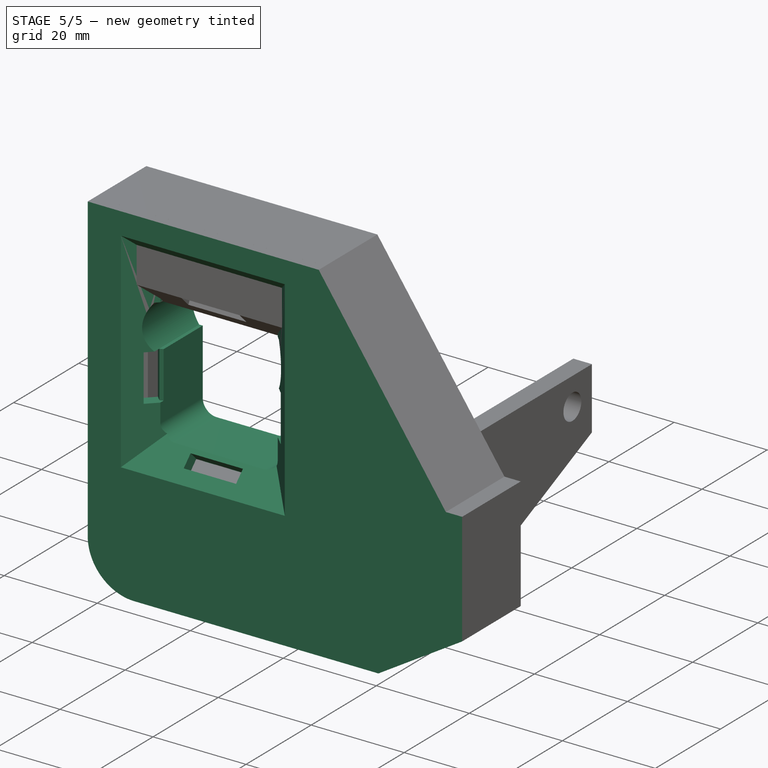
[diagram: stage 5 of 5 — iso view after this stage's code; geometry added in this stage tinted green]
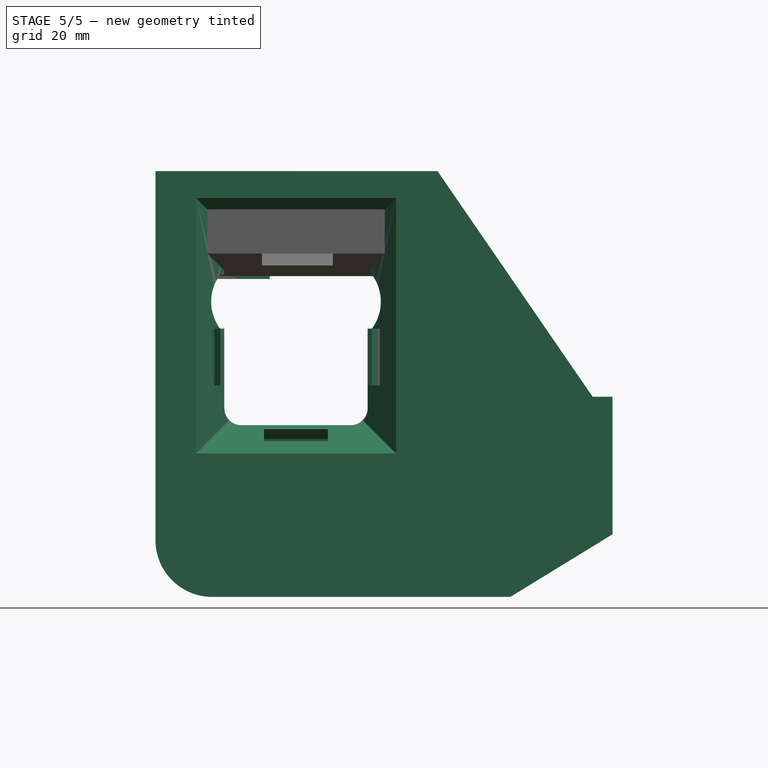
[diagram: stage 5 of 5 — front view after this stage's code; geometry added in this stage tinted green]
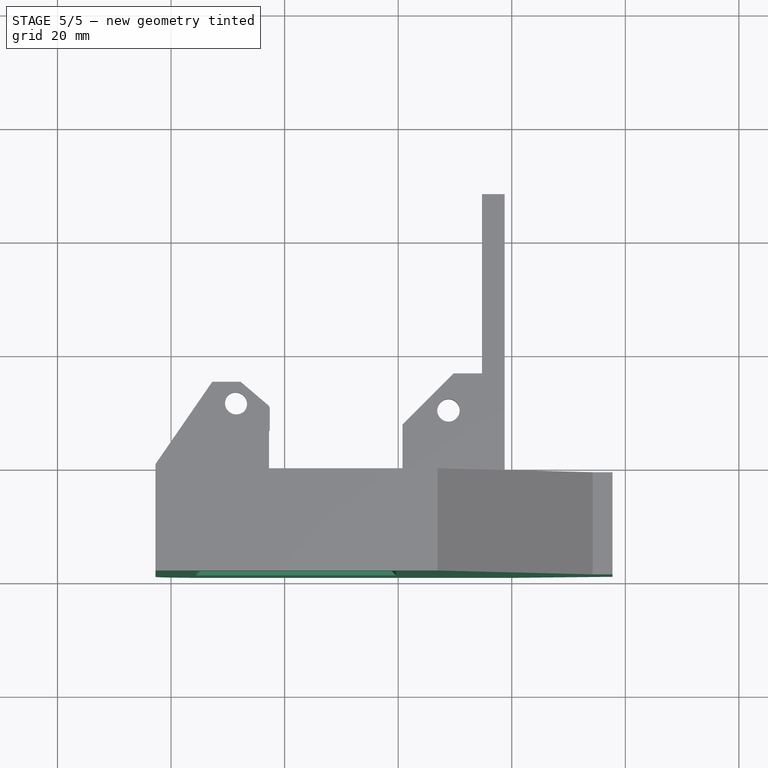
[diagram: stage 5 of 5 — top view after this stage's code; geometry added in this stage tinted green]
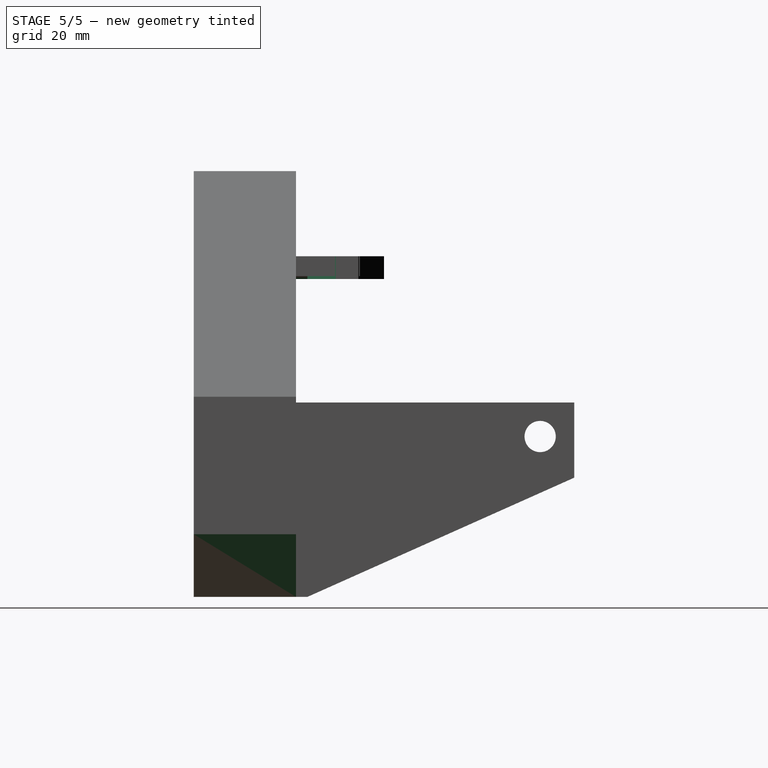
[diagram: stage 5 of 5 — right view after this stage's code; geometry added in this stage tinted green]
FEATURE [Part::FeaturePython] aero_mini_blower_mount_v6_1_0_lower_01  # a2plus imported part (geometry in sourceFile) (typed FeaturePython)
  fixedPosition = true
  sourceFile = <userpath>/west/Titan AEro/MINI_aero/aero_mini_blower_mount_v6.1.0_lower.fcstd
  timeLastImport = 1.50776e+09
  updateColors = true
FEATURE [PartDesign::Fillet] Fillet001
  Base = -> Fillet [Edge281,Edge42]
  BaseFeature = -> Fillet
  Placement = pos=(0,0,0) rot=(1,0,0;1.5708rad)
  Radius = 17
FEATURE [PartDesign::Fillet] Fillet002
  Base = -> Fillet001 [Edge242]
  BaseFeature = -> Fillet001
  Placement = pos=(0,0,0) rot=(1,0,0;1.5708rad)
  Radius = 7
FEATURE [PartDesign::Fillet] Fillet003
  Base = -> Fillet002 [Edge87]
  BaseFeature = -> Fillet002
  Placement = pos=(0,0,0) rot=(1,0,0;1.5708rad)
  Radius = 3
FEATURE [PartDesign::Body] Body
  Group = -> [Sketch,Pad,Sketch001,Pocket,Sketch002,Pocket001,Sketch003,Pocket002,Sketch004,Pocket003,Sketch005,Pad001,Sketch006,Sketch020,Pocket004,Sketch009,Sketch010,Sketch011,Pocket005,Pad002,Pad003,Pad004,Chamfer,Sketch021,Sketch022,SubtractivePipe,Sketch023,Sketch024,SubtractivePipe003002,Sketch025,Sketch026,SubtractivePipe003003,Sketch027,Sketch028,SubtractivePipe003004,Sketch029,Pocket006,Fillet,+3 more]
  Origin = -> Origin
  Tip = -> Fillet003
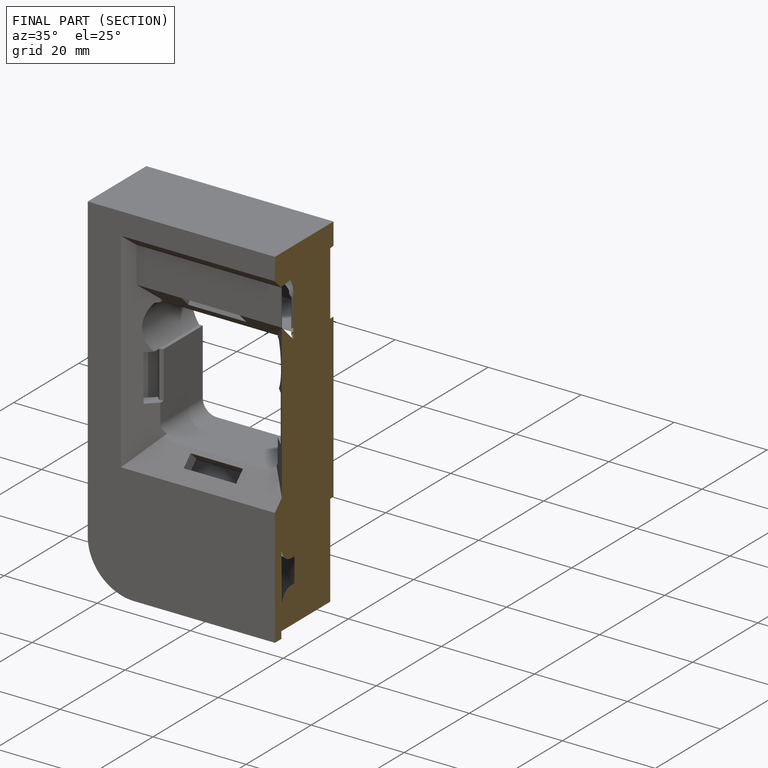
[diagram: finished part — half-section view (interior)]
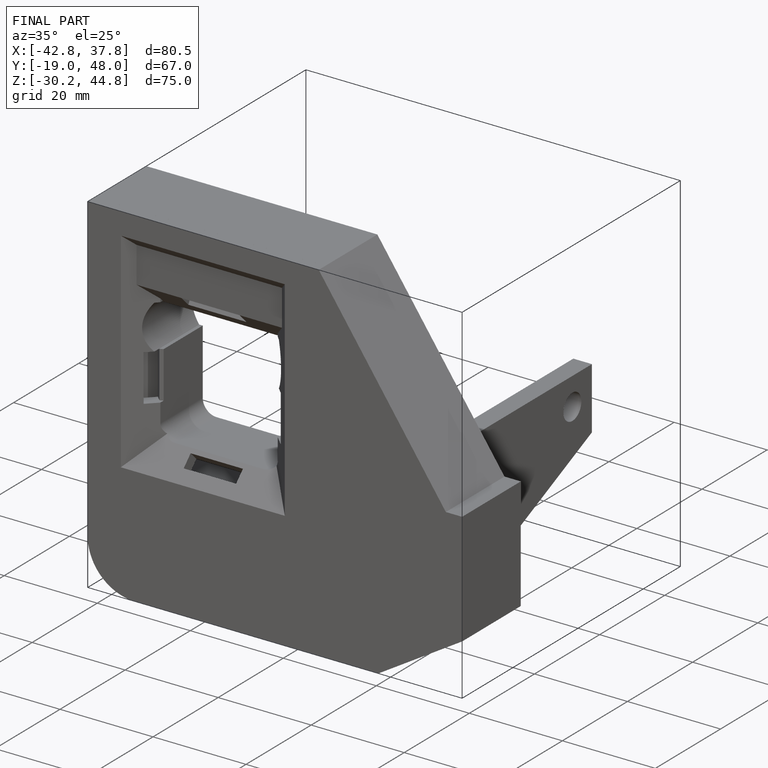
[diagram: finished part — iso view with bounding-box wireframe]
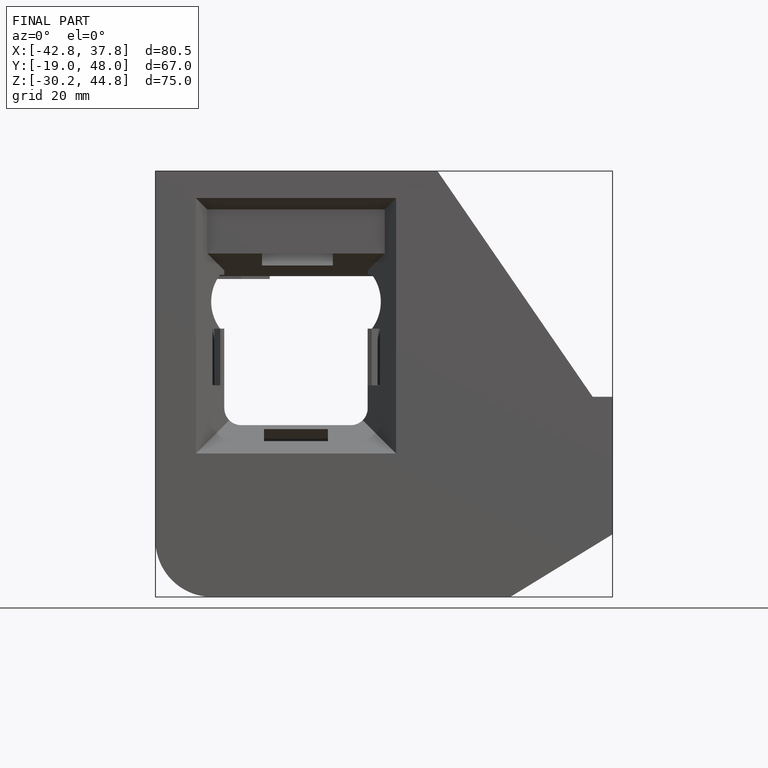
[diagram: finished part — front view with bounding-box wireframe]
